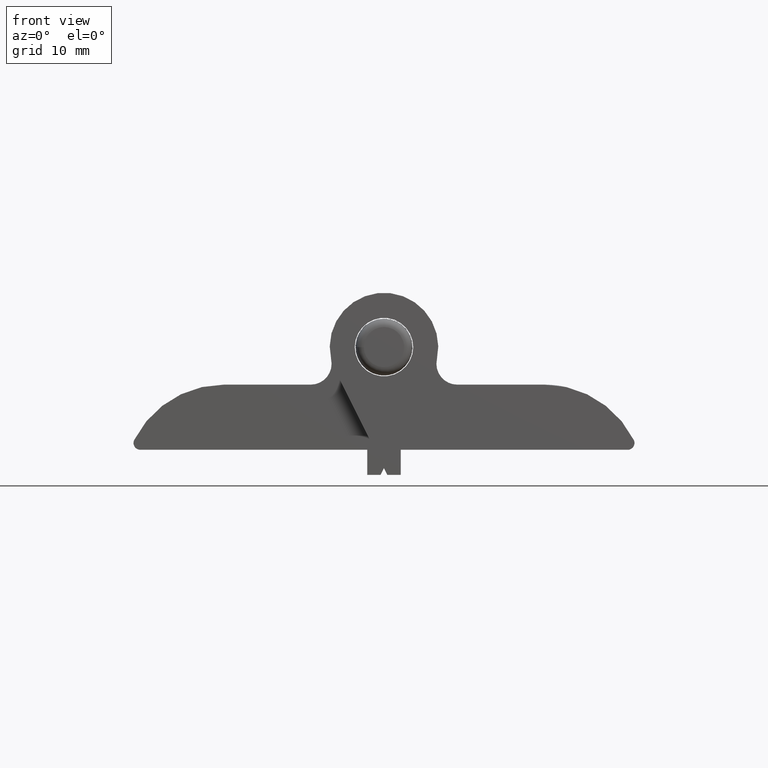
[diagram: clean part render]
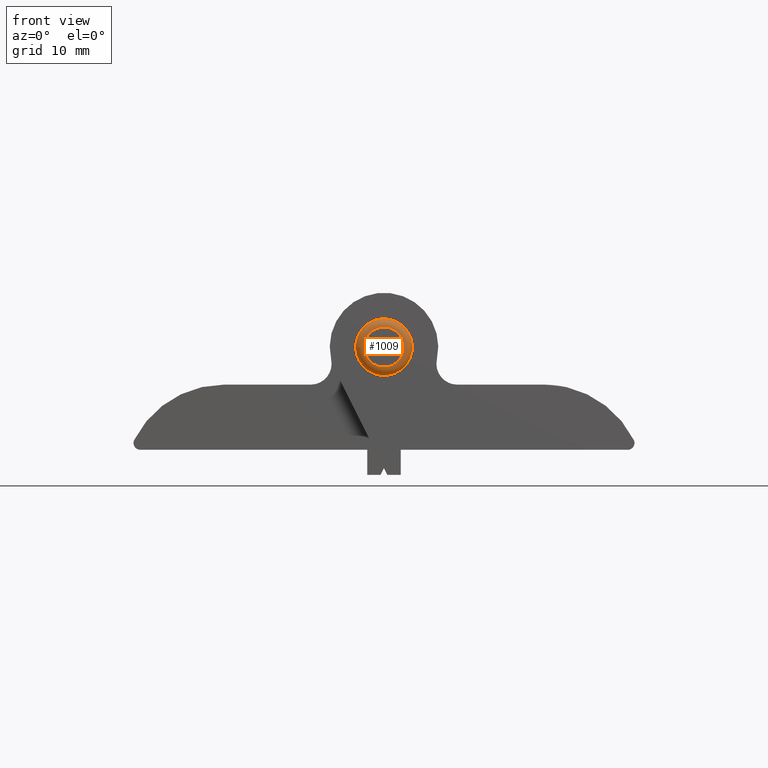
[diagram: same view with one face highlighted and labeled with its STEP entity id]
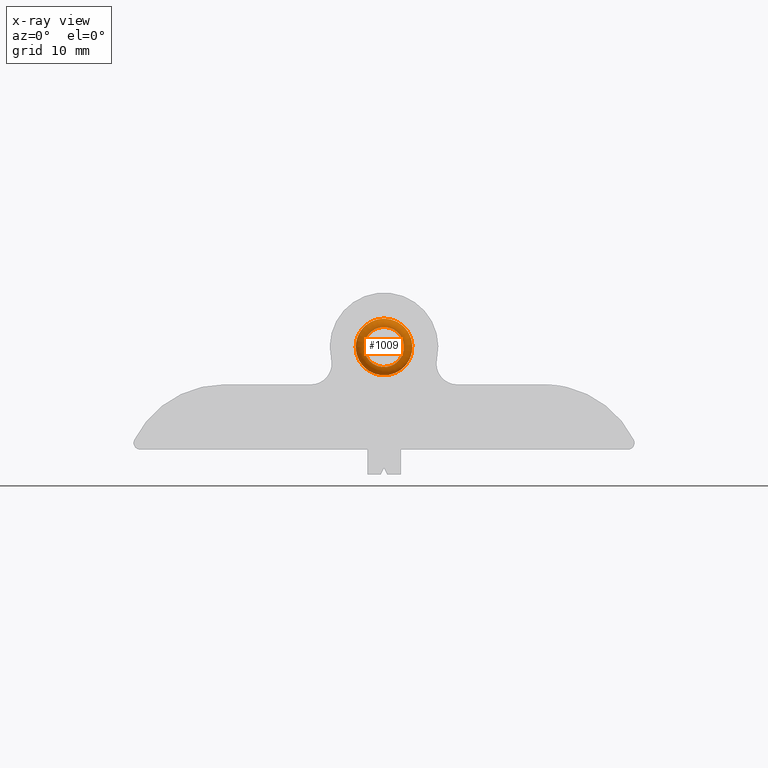
[diagram: x-ray of the same camera — body ghosted, the highlighted face saturated]
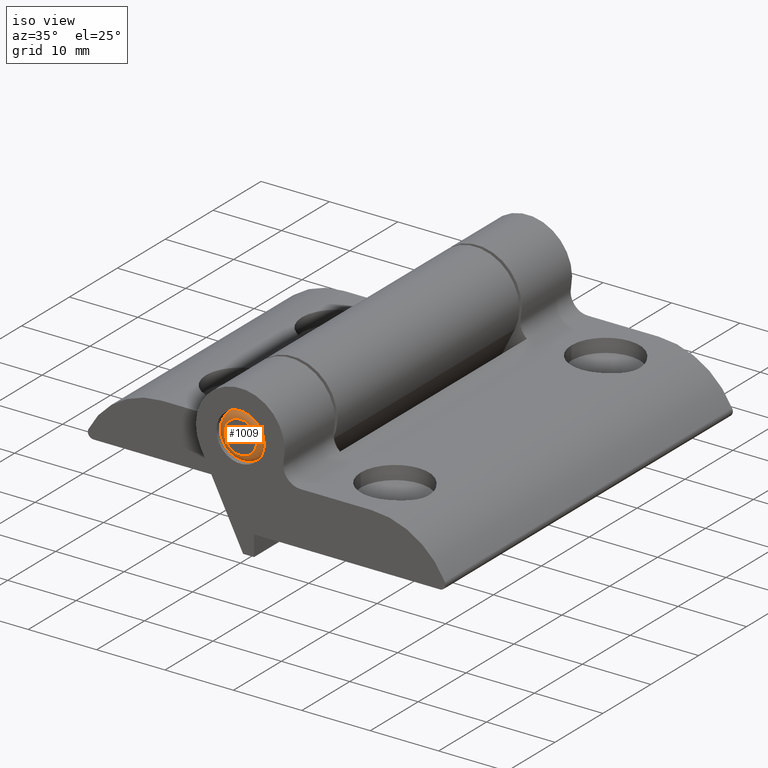
[diagram: same view with one face highlighted and labeled with its STEP entity id]
A machine part, front view. The second image highlights one B-rep face of the part: STEP entity #1009.
The next image is the same camera in x-ray: the body ghosted, the highlighted face saturated — about 0% of this face is hidden behind the body in this view.
A second angle (iso view) of the same face is appended — the face is thin or edge-on in the first view.
In plain terms, the highlighted toroidal blend (fillet) surface has major radius 2.4 mm and minor (blend) radius 1 mm.
Its self-contained STEP definition (entity closure, byte-faithful):
#23=TOROIDAL_SURFACE('',#1202,2.4,1.);
#150=FACE_OUTER_BOUND('',#211,.T.);
#211=EDGE_LOOP('',(#939,#940,#941,#942,#943,#944));
#408=CIRCLE('',#1203,2.4);
#409=CIRCLE('',#1204,1.);
#410=CIRCLE('',#1205,3.4);
#411=CIRCLE('',#1206,3.4);
#412=CIRCLE('',#1207,2.4);
#512=VERTEX_POINT('',#1922);
#513=VERTEX_POINT('',#1923);
#514=VERTEX_POINT('',#1925);
#515=VERTEX_POINT('',#1927);
#656=EDGE_CURVE('',#512,#513,#408,.T.);
#657=EDGE_CURVE('',#513,#514,#409,.T.);
#658=EDGE_CURVE('',#514,#515,#410,.T.);
#659=EDGE_CURVE('',#515,#514,#411,.T.);
#660=EDGE_CURVE('',#513,#512,#412,.T.);
#939=ORIENTED_EDGE('',*,*,#656,.T.);
#940=ORIENTED_EDGE('',*,*,#657,.T.);
#941=ORIENTED_EDGE('',*,*,#658,.T.);
#942=ORIENTED_EDGE('',*,*,#659,.T.);
#943=ORIENTED_EDGE('',*,*,#657,.F.);
#944=ORIENTED_EDGE('',*,*,#660,.T.);
#1009=ADVANCED_FACE('',(#150),#23,.T.);
#1202=AXIS2_PLACEMENT_3D('',#1921,#1488,#1489);
#1203=AXIS2_PLACEMENT_3D('',#1924,#1490,#1491);
#1204=AXIS2_PLACEMENT_3D('',#1926,#1492,#1493);
#1205=AXIS2_PLACEMENT_3D('',#1928,#1494,#1495);
#1206=AXIS2_PLACEMENT_3D('',#1929,#1496,#1497);
#1207=AXIS2_PLACEMENT_3D('',#1930,#1498,#1499);
#1488=DIRECTION('center_axis',(-1.,0.,0.));
#1489=DIRECTION('ref_axis',(0.,0.,1.));
#1490=DIRECTION('center_axis',(1.,0.,0.));
#1491=DIRECTION('ref_axis',(0.,-1.,0.));
#1492=DIRECTION('center_axis',(0.,-1.,1.22464679914735E-16));
#1493=DIRECTION('ref_axis',(0.,-1.22464679914735E-16,-1.));
#1494=DIRECTION('center_axis',(-1.,0.,0.));
#1495=DIRECTION('ref_axis',(0.,-1.,0.));
#1496=DIRECTION('center_axis',(-1.,0.,0.));
#1497=DIRECTION('ref_axis',(0.,-1.,0.));
#1498=DIRECTION('center_axis',(1.,0.,0.));
#1499=DIRECTION('ref_axis',(0.,-1.,0.));
#1921=CARTESIAN_POINT('Origin',(1.,0.,0.));
#1922=CARTESIAN_POINT('',(0.,2.4,2.93915231795365E-16));
#1923=CARTESIAN_POINT('',(0.,-2.93915231795365E-16,-2.4));
#1924=CARTESIAN_POINT('Origin',(0.,0.,0.));
#1925=CARTESIAN_POINT('',(1.,-4.163799117101E-16,-3.4));
#1926=CARTESIAN_POINT('Origin',(1.,-2.93915231795365E-16,-2.4));
#1927=CARTESIAN_POINT('',(1.,3.4,-4.163799117101E-16));
#1928=CARTESIAN_POINT('Origin',(1.,0.,0.));
#1929=CARTESIAN_POINT('Origin',(1.,0.,0.));
#1930=CARTESIAN_POINT('Origin',(0.,0.,0.));